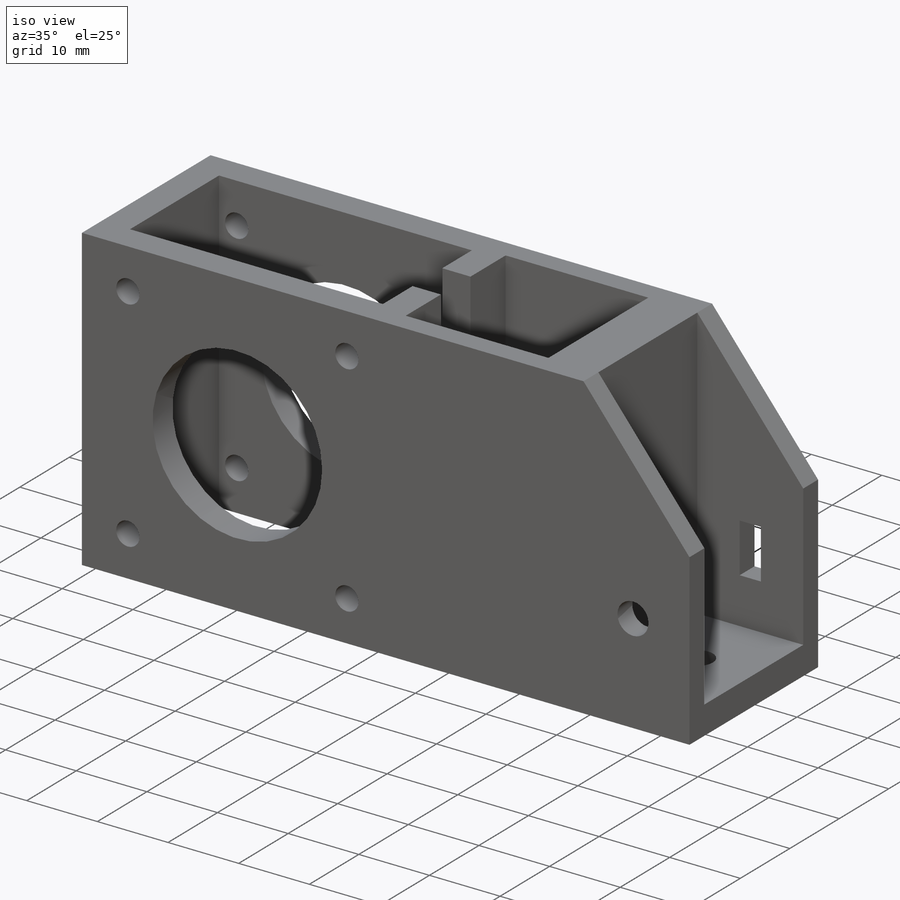
[diagram: iso view]
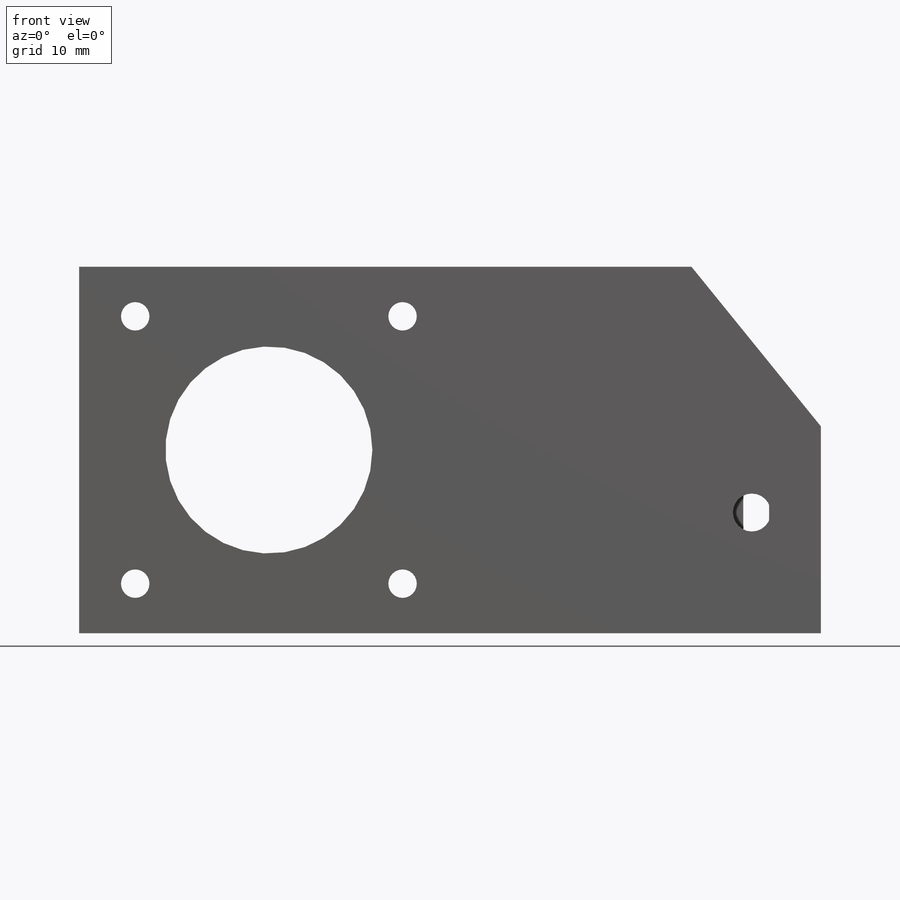
[diagram: front view]
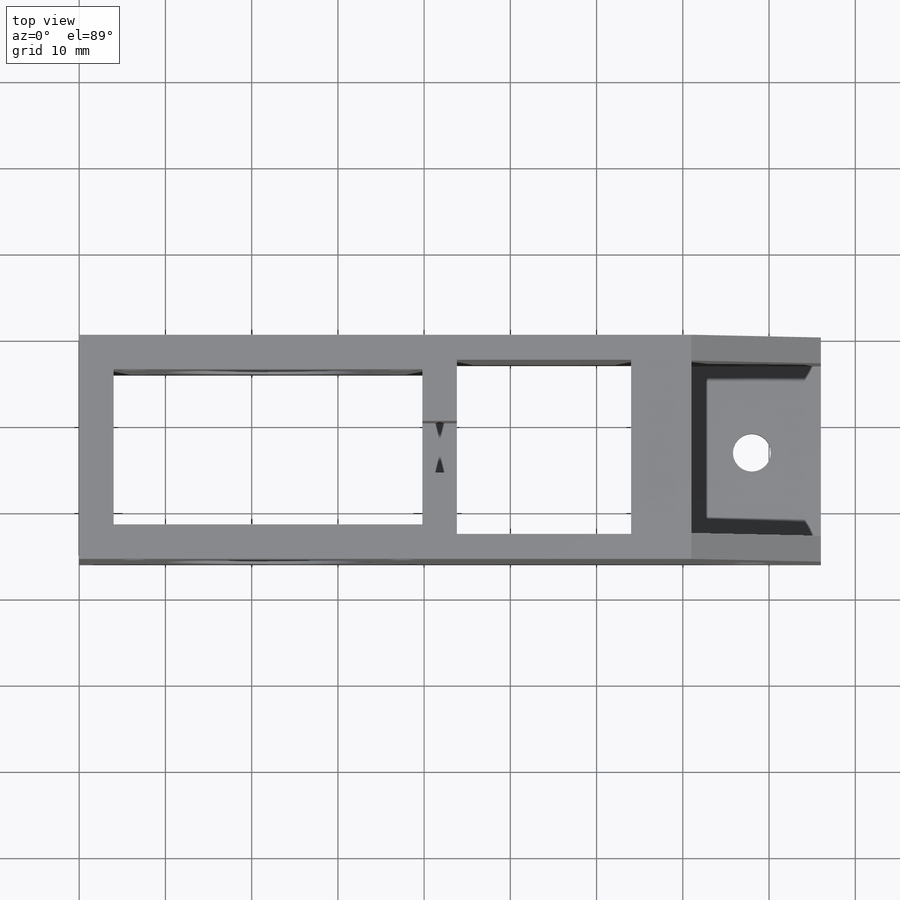
[diagram: top view]
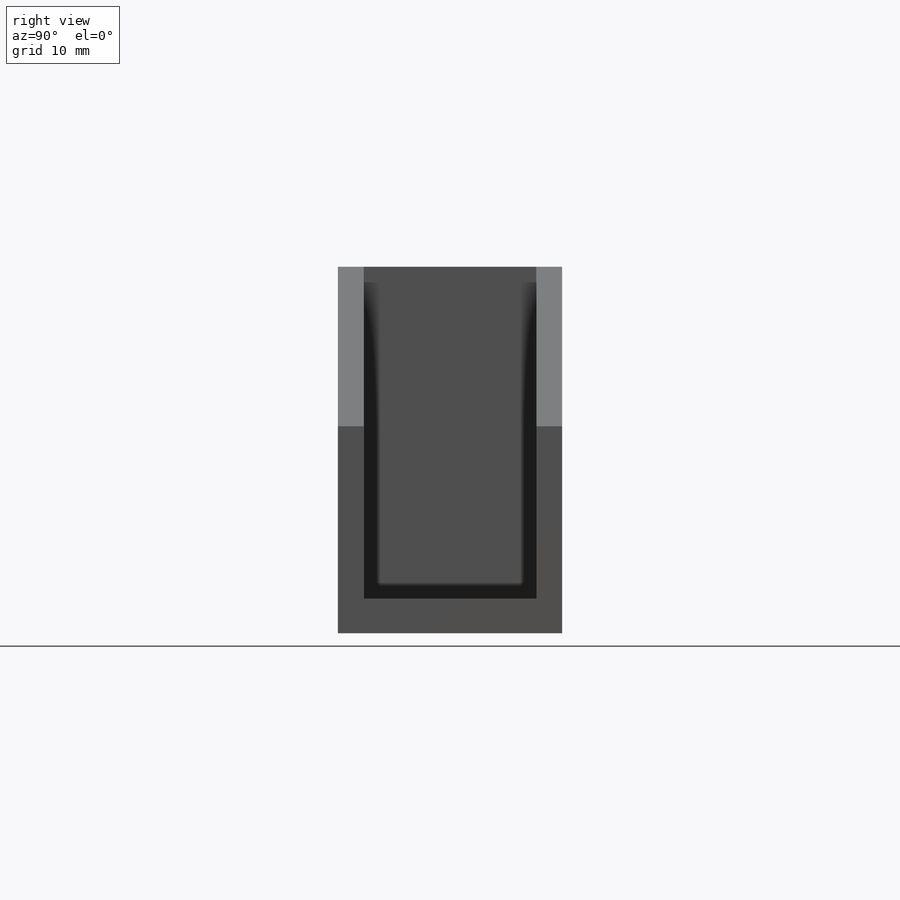
[diagram: right view]
SOLIDWORKS PART (.sldprt)
format: sldprt  version: not decoded by parser v0  size: 380,416 bytes
history: native  units: mm
features: sketch x12, cut_extrude x5, plane x3, hole x3, material x1, extrude x1 (+9 scaffold rows collapsed)
feature tree (34):
  scaffold x9  (default folders/planes/origin — collapsed)
  material  "Matériau <non spécifié>"
  plane  "Plan de face"
  plane  "Plan de dessus"
  plane  "Plan de droite"
  sketch  "Esquisse1"  dims[D1=42.5mm D2=86.0mm D3=24.0mm D4=71.0mm D5=15.0mm]
  extrude  "Boss.-Extru.1"  Depth=26mm
  sketch  "Esquisse2"  dims[c1.D1=~24.207065mm c1.D2=24.0mm c2.D1=22.0mm c2.D2=22.5mm]
  cut_extrude  "Enlèv. mat.-Extru.1"  [1 undecoded]
  sketch  "Esquisse3"  dims[c1.D1=~19.09157mm c1.D2=~27.539105mm c2.D1=~18.46541mm c2.D2=~24.63641mm c3.D1=4.0mm c3.D2=4.0mm c3.D3=4.0mm c3.D4=4.0mm c3.D5=7.0mm c3.D6=34.0mm c3.D7=20.2mm c4.D6=20.2mm c4.D8=18.0mm c4.D1=4.0mm]
  cut_extrude  "Enlèv. mat.-Extru.2"  [1 undecoded]
  sketch  "Esquisse4"  dims[c1.D1=~20.573996mm c1.D2=15.0mm c2.D1=3.0mm c2.D2=3.0mm]
  cut_extrude  "Enlèv. mat.-Extru.3"  Depth=4mm
  hole  "Dégagement M31"  Diameter=3.3mm Depth=26mm
  sketch  "Esquisse6"  dims[c1.D1=~27.756572mm c1.D2=~29.786443mm c2.D1=31.0mm c2.D2=31.0mm c2.D3=6.5mm c2.D4=5.75mm]
  sketch  "Esquisse5"  dims[hole-wizard template sketch: 59 standard entries collapsed; hole parameters kept: c18.Diamètre du perçage jusqu'au prochain=3.3mm c18.Profondeur du perçage jusqu'au prochain=26.0mm]
  sketch  "Esquisse7"  dims[c1.D1=~19.161979mm c1.D2=~4.749548mm c2.D1=~17.054807mm c2.D2=~4.749548mm c3.D1=7.0mm c3.D2=7.0mm c3.D3=4.0mm c3.D4=16.0mm c3.D5=16.0mm c3.D6=10.5mm c4.D1=6.0mm c4.D2=42.5mm]
  cut_extrude  "Enlèv. mat.-Extru.4"  [1 undecoded]
  hole  "Dégagement M41"  Diameter=4.4mm Depth=24mm
  sketch  "Esquisse9"  dims[D1=8.0mm D2=10.0mm]
  sketch  "Esquisse8"  dims[hole-wizard template sketch: 47 standard entries collapsed; hole parameters kept: c15.Profondeur du perçage=24.0mm c15.D3=~14.816244mm c15.Angle de pointe=180.0deg]
  hole  "Dégagement M42"  Diameter=4.4mm Depth=24mm
  sketch  "Esquisse11"  dims[D1=8.0mm D2=10.0mm]
  sketch  "Esquisse10"  dims[hole-wizard template sketch: 47 standard entries collapsed; hole parameters kept: c15.Profondeur du perçage=24.0mm c15.D3=~14.816244mm c15.Angle de pointe=180.0deg]
  sketch  "Esquisse12"  dims[c1.D1=~6.012214mm c1.D2=~3.811706mm c2.D1=3.0mm c2.D2=7.0mm c2.D3=6.5mm c2.D4=6.0mm]
  cut_extrude  "Enlèv. mat.-Extru.5"  [1 undecoded]
decode coverage: 17 of 21 modeling features carry decoded parameters
note: ~ marks probable driven/reference dimensions
note: 4 parameter values undecoded
summary: no parameter record found for 4 features
note: suppression state not decoded; provenance and decode notes live in map.json
